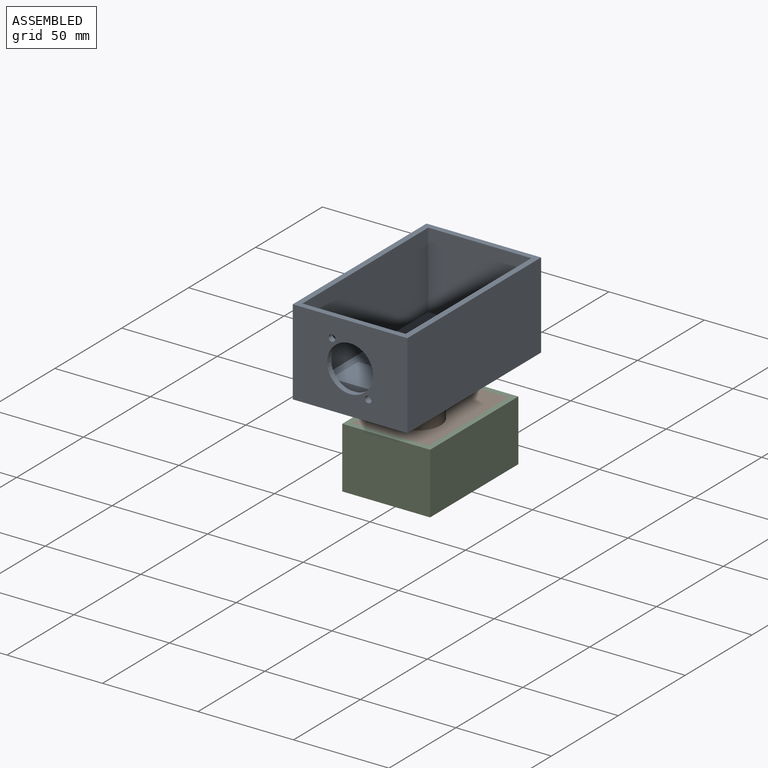
[diagram: assembled view]
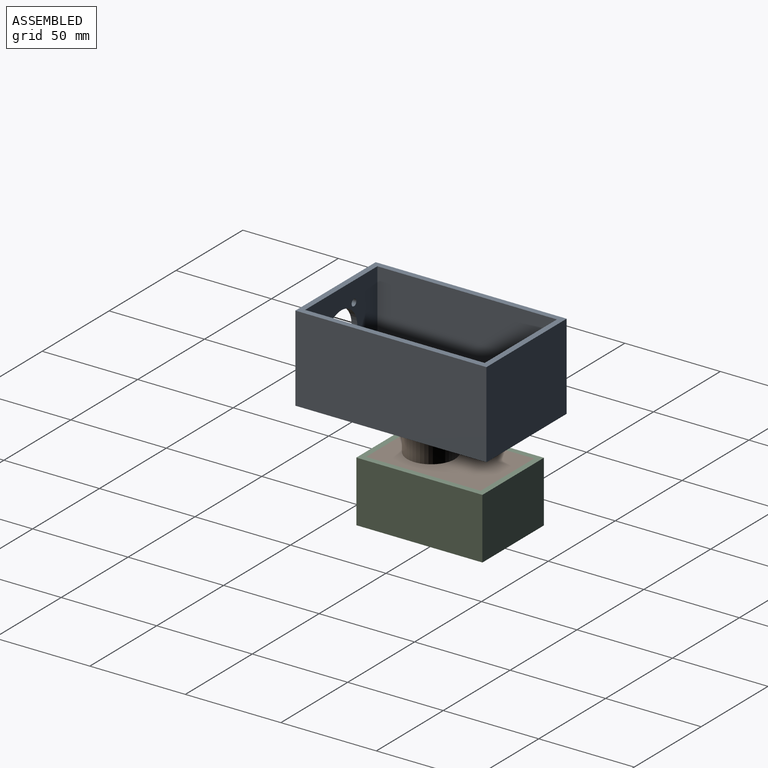
[diagram: assembled view, second angle]
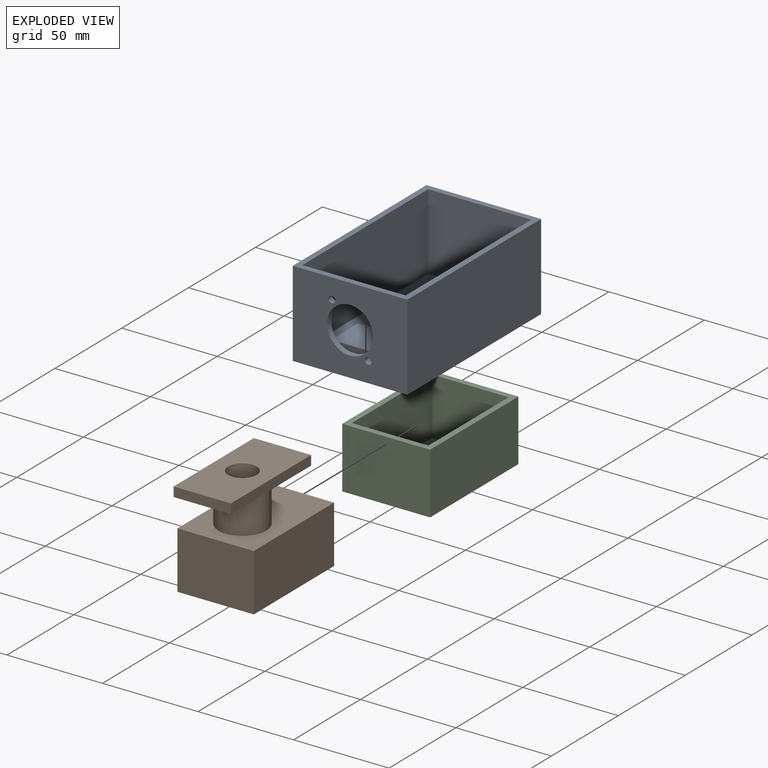
[diagram: exploded view]
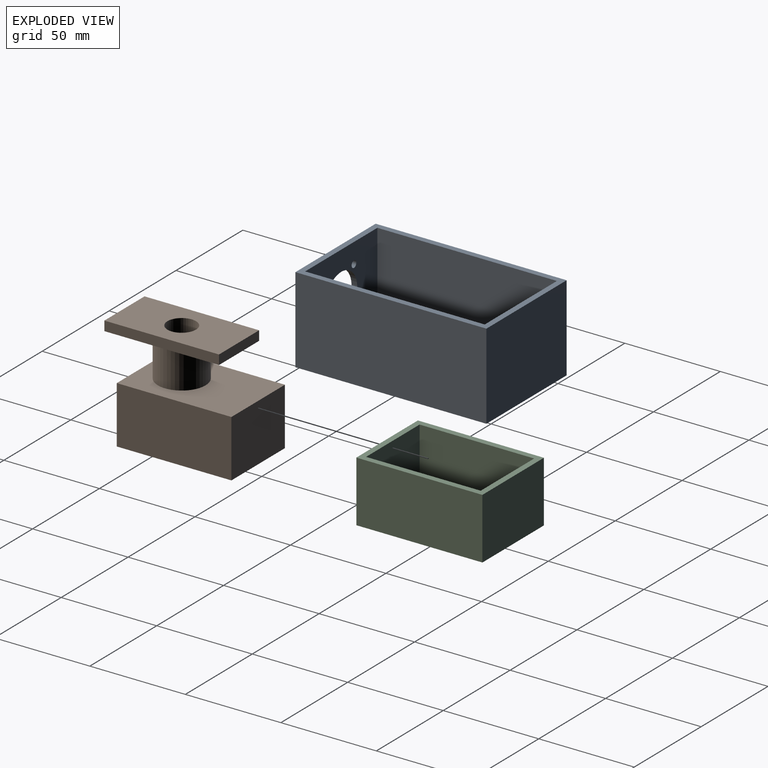
[diagram: exploded view, second angle]
ASSEMBLY  parts=3 mates=2
PART A: 30 faces, bbox 60x100x45 mm
  f0: plane 100x60mm, normal (0,0,-1), area 4200mm2, adj f1,f2,f3,f4,f22,f23,f24,f25
  f1: plane 60x45mm, normal (0,1,0), area 2700mm2, adj f0,f2,f4,f9
  f2: plane 100x45mm, normal (-1,0,0), area 4500mm2, adj f0,f1,f3,f9
  f3: plane 60x45mm, normal (0,-1,0), area 2228.4mm2, adj f0,f2,f4,f9,f27,f28,f29
  f4: plane 100x45mm, normal (1,0,0), area 4500mm2, adj f0,f1,f3,f9
  f5: plane 94x40mm, normal (1,0,0), area 3760mm2, adj f6,f8,f9,f10
  f6: plane 54x40mm, normal (0,-1,0), area 2160mm2, adj f5,f7,f9,f10
  f7: plane 94x40mm, normal (-1,0,0), area 3760mm2, adj f6,f8,f9,f10
  f8: plane 54x40mm, normal (0,1,0), area 1688.4mm2, adj f5,f7,f9,f10,f27,f28,f29
  f9: plane 100x60mm, normal (0,0,1), area 924mm2, adj f1,f2,f3,f4,f5,f6,f7,f8
  f10: plane 94x54mm, normal (0,0,1), area 2456mm2, adj f5,f6,f7,f8,f11,f12,f13,f14
  f11: plane 20x3mm, normal (-1,0,0), area 60mm2, adj f10,f12,f14,f15
  f12: plane 40x3mm, normal (0,-1,0), area 120mm2, adj f10,f11,f13,f15
  f13: plane 20x3mm, normal (1,0,0), area 60mm2, adj f10,f12,f14,f15
  f14: plane 40x3mm, normal (0,1,0), area 120mm2, adj f10,f11,f13,f15,f21
  f15: plane 40x20mm, normal (0,0,1), area 800mm2, adj f11,f12,f13,f14
  f16: plane 20x3mm, normal (-1,0,0), area 60mm2, adj f10,f17,f19,f20
  f17: plane 40x3mm, normal (0,-1,0), area 120mm2, adj f10,f16,f18,f20,f26
  f18: plane 20x3mm, normal (1,0,0), area 60mm2, adj f10,f17,f19,f20
  f19: plane 40x3mm, normal (0,1,0), area 120mm2, adj f10,f16,f18,f20
  f20: plane 40x20mm, normal (0,0,1), area 800mm2, adj f16,f17,f18,f19
  f21: plane 30x13mm, normal (0,0,-1), area 390mm2, adj f14,f23,f24,f25
  f22: plane 30x5mm, normal (0,-1,0), area 150mm2, adj f0,f23,f25,f26
  f23: plane 60x5mm, normal (-1,0,0), area 300mm2, adj f0,f10,f21,f22,f24,f26
  f24: plane 30x5mm, normal (0,1,0), area 150mm2, adj f0,f21,f23,f25
  f25: plane 60x5mm, normal (1,0,0), area 300mm2, adj f0,f10,f21,f22,f24,f26
  f26: plane 30x13mm, normal (0,0,-1), area 390mm2, adj f17,f22,f23,f25
  f27: cylinder r=12mm len=24mm, axis (0,-1,0), area 226.2mm2, adj f3,f8
  f28: cylinder r=1.75mm len=3.5mm, axis (0,-1,0), area 33mm2, adj f3,f8
  f29: cylinder r=1.75mm len=3.5mm, axis (0,-1,0), area 33mm2, adj f3,f8
PART B: 35 faces, bbox 70x40x55 mm
  f0: plane 60x40mm, normal (0,0,1), area 564mm2, adj f8,f9,f10,f11,f13,f14,f15,f16
  f1: plane 30x5mm, normal (1,0,0), area 150mm2, adj f2,f4,f5,f6
  f2: plane 60x5mm, normal (0,1,0), area 300mm2, adj f1,f3,f5,f6
  f3: plane 30x5mm, normal (-1,0,0), area 150mm2, adj f2,f4,f5,f6
  f4: plane 60x5mm, normal (0,-1,0), area 300mm2, adj f1,f3,f5,f6
  f5: plane 60x30mm, normal (0,0,1), area 1309.1mm2, adj f1,f2,f3,f4,f7
  f6: plane 60x30mm, normal (0,0,-1), area 1623.3mm2, adj f1,f2,f3,f4,f18
  f7: cylinder r=12.5mm len=25mm, axis (0,0,-1), area 1570.8mm2, adj f5,f12
  f8: plane 60x30mm, normal (0,1,0), area 1800mm2, adj f0,f9,f11,f12
  f9: plane 40x30mm, normal (-1,0,0), area 1200mm2, adj f0,f8,f10,f12
  f10: plane 60x30mm, normal (0,-1,0), area 1800mm2, adj f0,f9,f11,f12
  f11: plane 40x30mm, normal (1,0,0), area 1200mm2, adj f0,f8,f10,f12
  f12: plane 60x40mm, normal (0,0,-1), area 1909.1mm2, adj f7,f8,f9,f10,f11
  f13: plane 54x27mm, normal (0,-1,0), area 1458mm2, adj f0,f14,f16,f17
  f14: plane 34x27mm, normal (1,0,0), area 918mm2, adj f0,f13,f15,f17
  f15: plane 54x27mm, normal (0,1,0), area 1458mm2, adj f0,f14,f16,f17
  f16: plane 34x27mm, normal (-1,0,0), area 918mm2, adj f0,f13,f15,f17
  f17: plane 54x34mm, normal (0,0,1), area 1546.2mm2, adj f13,f14,f15,f16,f18,f19,f21,f23
  f18: cylinder r=7.5mm len=28mm, axis (0,0,1), area 1319.5mm2, adj f6,f17
  f19: cylinder r=3mm len=7mm, axis (0,0,-1), area 131.9mm2, adj f17,f20
  f20: plane 6x6mm, normal (0,0,1), area 21.2mm2, adj f19,f29
  f21: cylinder r=3mm len=7mm, axis (0,0,-1), area 131.9mm2, adj f17,f22
  f22: plane 6x6mm, normal (0,0,1), area 21.2mm2, adj f21,f33
  f23: cylinder r=3mm len=7mm, axis (0,0,-1), area 131.9mm2, adj f17,f24
  f24: plane 6x6mm, normal (0,0,1), area 21.2mm2, adj f23,f27
  f25: cylinder r=3mm len=7mm, axis (0,0,-1), area 131.9mm2, adj f17,f26
  f26: plane 6x6mm, normal (0,0,1), area 21.2mm2, adj f25,f31
  f27: cylinder r=1.5mm len=5mm, axis (0,0,1), area 47.1mm2, adj f24,f28
  f28: plane 3x3mm, normal (0,0,1), area 7.1mm2, adj f27
  f29: cylinder r=1.5mm len=5mm, axis (0,0,1), area 47.1mm2, adj f20,f30
  f30: plane 3x3mm, normal (0,0,1), area 7.1mm2, adj f29
  f31: cylinder r=1.5mm len=5mm, axis (0,0,1), area 47.1mm2, adj f26,f32
  f32: plane 3x3mm, normal (0,0,1), area 7.1mm2, adj f31
  f33: cylinder r=1.5mm len=5mm, axis (0,0,1), area 47.1mm2, adj f22,f34
  f34: plane 3x3mm, normal (0,0,1), area 7.1mm2, adj f33
PART C: 12 faces, bbox 66x46x32 mm
  f0: plane 66x32mm, normal (0,1,0), area 2112mm2, adj f1,f3,f4,f9
  f1: plane 46x32mm, normal (-1,0,0), area 1472mm2, adj f0,f2,f4,f9
  f2: plane 66x32mm, normal (0,-1,0), area 2112mm2, adj f1,f3,f4,f9
  f3: plane 46x32mm, normal (1,0,0), area 1472mm2, adj f0,f2,f4,f9
  f4: plane 66x46mm, normal (0,0,-1), area 2545.1mm2, adj f0,f1,f2,f3,f11
  f5: plane 40x30mm, normal (1,0,0), area 1200mm2, adj f6,f8,f9,f10
  f6: plane 60x30mm, normal (0,-1,0), area 1800mm2, adj f5,f7,f9,f10
  f7: plane 40x30mm, normal (-1,0,0), area 1200mm2, adj f6,f8,f9,f10
  f8: plane 60x30mm, normal (0,1,0), area 1800mm2, adj f5,f7,f9,f10
  f9: plane 66x46mm, normal (0,0,1), area 636mm2, adj f0,f1,f2,f3,f5,f6,f7,f8
  f10: plane 60x40mm, normal (0,0,1), area 1909.1mm2, adj f5,f6,f7,f8,f11
  f11: cylinder r=12.5mm len=25mm, axis (0,0,1), area 157.1mm2, adj f4,f10
PLACE A t=(-184.6,-63.57,-189.84)mm
PLACE B rot(axis=(-0.71,0.71,0),180deg) t=(-209.99,-88.36,-184.84)mm
PLACE C rot(axis=(0,0,-1),90deg) t=(-207.54,-53.15,-241.84)mm
MATE fastened C.f7 <-> B.f11  axis (0,1,0) through (-201.65,-82.55,-224.84)mm
MATE fastened B.f3 <-> A.f22  axis (0,1,0) through (-201.65,-32.55,-187.34)mm
